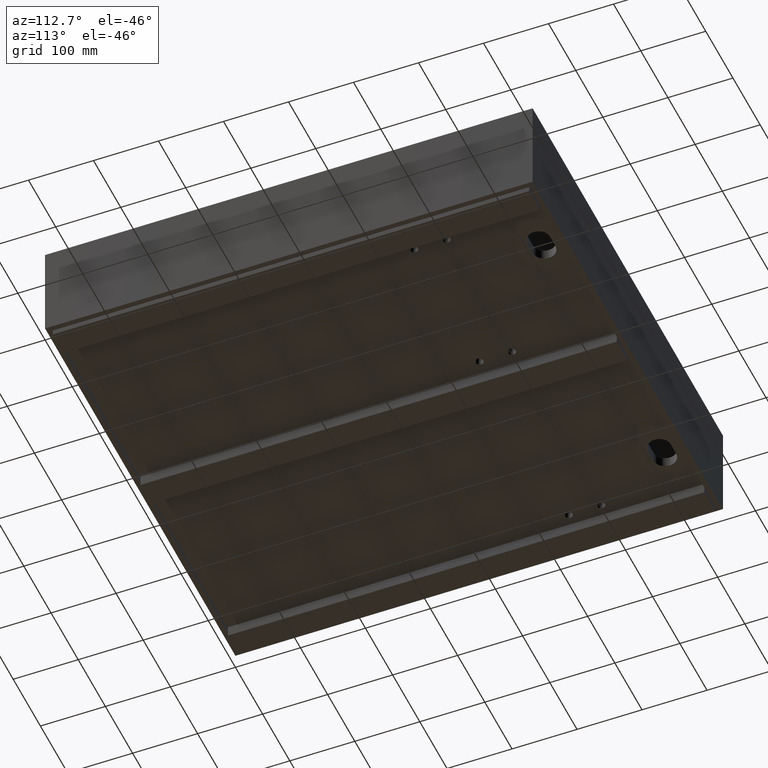
[diagram: clean part render]
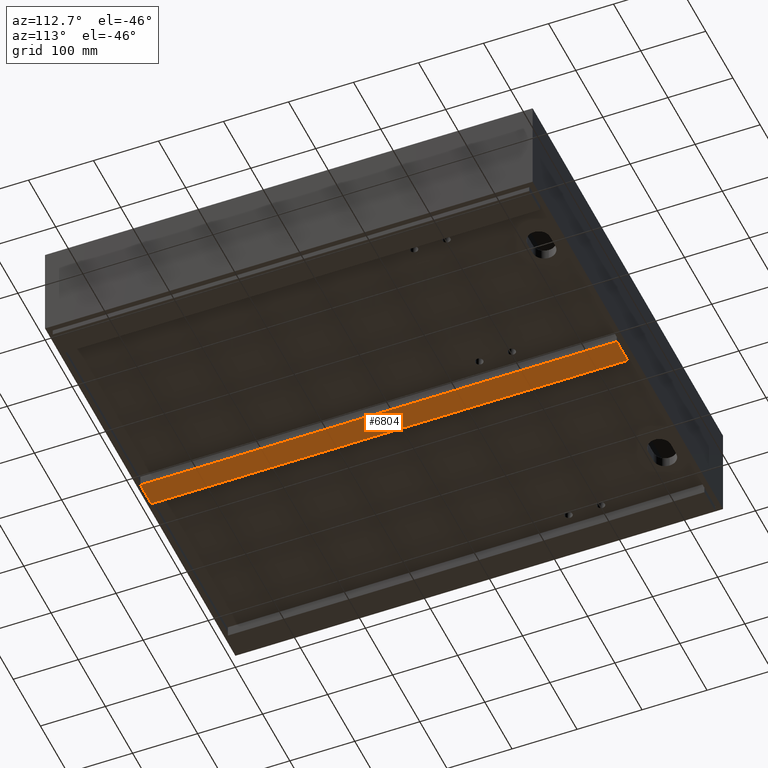
[diagram: same view with one face highlighted and labeled with its STEP entity id]
A machine part, auxiliary view. The second image highlights one B-rep face of the part: STEP entity #6804.
In plain terms, the highlighted planar face has unit normal (-0, 0, -1).
Its self-contained STEP definition (entity closure, byte-faithful):
#1 = CARTESIAN_POINT ( 'NONE',  ( 369.9999999999998295, 8.499999999999952038, -158.0000000000003126 ) ) ;
#702 = ORIENTED_EDGE ( 'NONE', *, *, #979, .T. ) ;
#898 = CARTESIAN_POINT ( 'NONE',  ( 0.0000000000000000000, 0.0000000000000000000, -158.0000000000003126 ) ) ;
#979 = EDGE_CURVE ( 'NONE', #7331, #2299, #8098, .T. ) ;
#1523 = CARTESIAN_POINT ( 'NONE',  ( 369.9999999999998295, 8.499999999999952038, -158.0000000000003126 ) ) ;
#1741 = EDGE_CURVE ( 'NONE', #2299, #3729, #9642, .T. ) ;
#1903 = LINE ( 'NONE', #5531, #3879 ) ;
#2299 = VERTEX_POINT ( 'NONE', #8318 ) ;
#2742 = ORIENTED_EDGE ( 'NONE', *, *, #1741, .T. ) ;
#3588 = DIRECTION ( 'NONE',  ( 1.000000000000000000, 4.804298815520074808E-36, 0.0000000000000000000 ) ) ;
#3729 = VERTEX_POINT ( 'NONE', #1 ) ;
#3860 = ORIENTED_EDGE ( 'NONE', *, *, #10395, .T. ) ;
#3879 = VECTOR ( 'NONE', #9136, 1000.000000000000000 ) ;
#4243 = CARTESIAN_POINT ( 'NONE',  ( 369.9999999999999432, 741.4999000000001388, -158.0000000000003126 ) ) ;
#4496 = DIRECTION ( 'NONE',  ( -0.0000000000000000000, 0.0000000000000000000, -1.000000000000000000 ) ) ;
#4641 = EDGE_LOOP ( 'NONE', ( #2742, #3860, #6848, #702 ) ) ;
#5142 = DIRECTION ( 'NONE',  ( -1.000000000000000000, 1.301042606982606060E-16, 0.0000000000000000000 ) ) ;
#5153 = EDGE_CURVE ( 'NONE', #7010, #7331, #1903, .T. ) ;
#5401 = FACE_OUTER_BOUND ( 'NONE', #4641, .T. ) ;
#5531 = CARTESIAN_POINT ( 'NONE',  ( 329.9999999999998863, 741.4999000000001388, -158.0000000000003126 ) ) ;
#6804 = ADVANCED_FACE ( 'NONE', ( #5401 ), #9014, .T. ) ;
#6848 = ORIENTED_EDGE ( 'NONE', *, *, #5153, .T. ) ;
#7010 = VERTEX_POINT ( 'NONE', #9420 ) ;
#7331 = VERTEX_POINT ( 'NONE', #8283 ) ;
#7708 = AXIS2_PLACEMENT_3D ( 'NONE', #898, #4496, #8127 ) ;
#7874 = DIRECTION ( 'NONE',  ( -1.514629162466674743E-16, -1.000000000000000000, 0.0000000000000000000 ) ) ;
#7939 = VECTOR ( 'NONE', #5142, 1000.000000000000000 ) ;
#8098 = LINE ( 'NONE', #11691, #11570 ) ;
#8127 = DIRECTION ( 'NONE',  ( -1.000000000000000000, -4.804298815520074808E-36, 0.0000000000000000000 ) ) ;
#8283 = CARTESIAN_POINT ( 'NONE',  ( 329.9999999999998863, 741.4999000000001388, -158.0000000000003126 ) ) ;
#8318 = CARTESIAN_POINT ( 'NONE',  ( 369.9999999999999432, 741.4999000000001388, -158.0000000000003126 ) ) ;
#9014 = PLANE ( 'NONE',  #7708 ) ;
#9136 = DIRECTION ( 'NONE',  ( 7.573145812333373714E-17, 1.000000000000000000, 0.0000000000000000000 ) ) ;
#9420 = CARTESIAN_POINT ( 'NONE',  ( 329.9999999999998295, 8.499999999999952038, -158.0000000000003126 ) ) ;
#9637 = LINE ( 'NONE', #1523, #7939 ) ;
#9642 = LINE ( 'NONE', #4243, #11205 ) ;
#10395 = EDGE_CURVE ( 'NONE', #3729, #7010, #9637, .T. ) ;
#11205 = VECTOR ( 'NONE', #7874, 1000.000000000000000 ) ;
#11570 = VECTOR ( 'NONE', #3588, 1000.000000000000000 ) ;
#11691 = CARTESIAN_POINT ( 'NONE',  ( 369.9999999999999432, 741.4999000000001388, -158.0000000000003126 ) ) ;